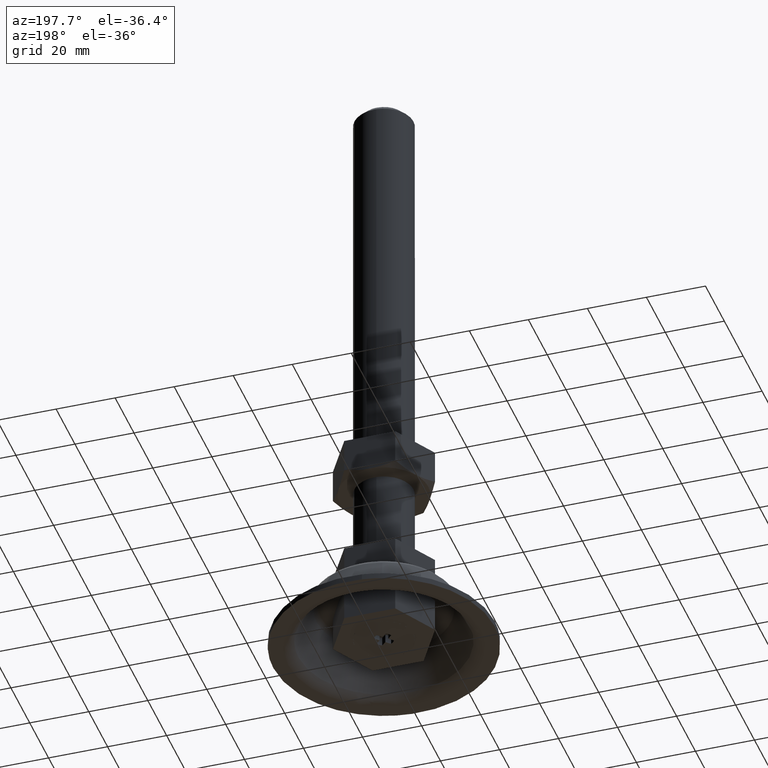
[diagram: clean part render]
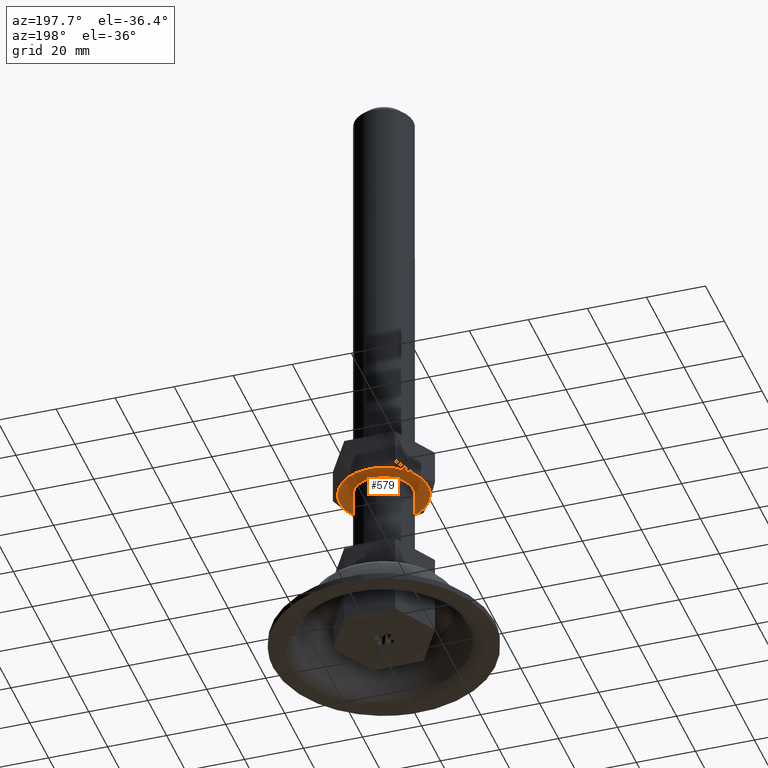
[diagram: same view with one face highlighted and labeled with its STEP entity id]
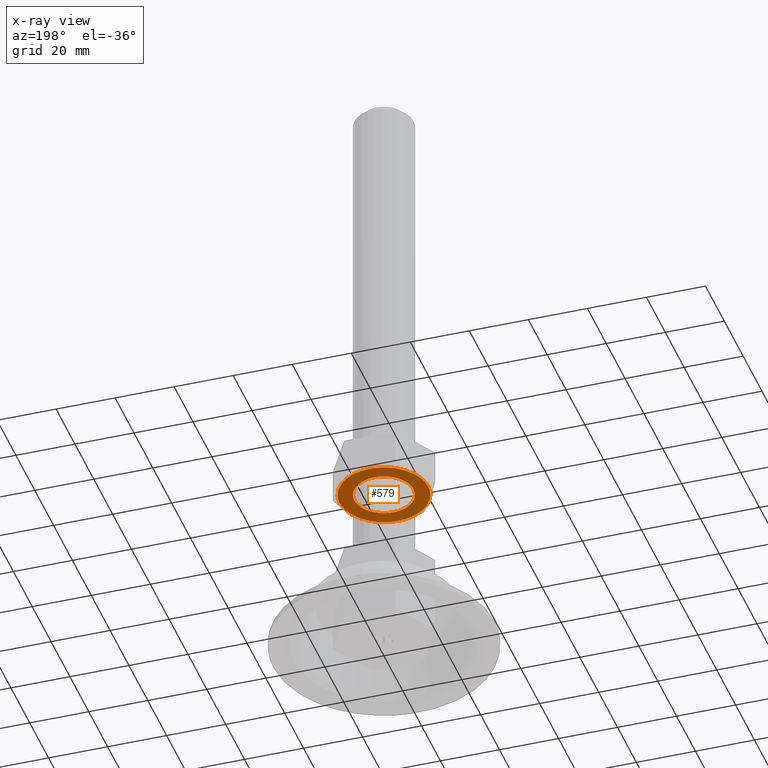
[diagram: x-ray of the same camera — body ghosted, the highlighted face saturated]
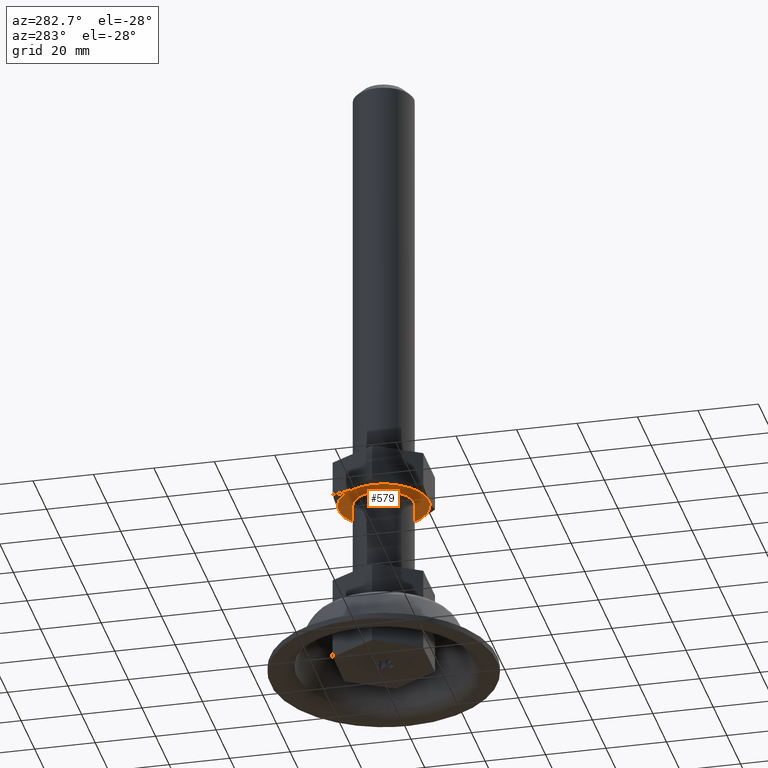
[diagram: same view with one face highlighted and labeled with its STEP entity id]
A machine part, auxiliary view. The second image highlights one B-rep face of the part: STEP entity #579.
The next image is the same camera in x-ray: the body ghosted, the highlighted face saturated — about 9% of this face is hidden behind the body in this view.
A second angle (auxiliary view) of the same face is appended — the face is thin or edge-on in the first view.
In plain terms, the highlighted face is a freeform B-spline surface patch.
Its self-contained STEP definition (entity closure, byte-faithful):
#62=CARTESIAN_POINT('',(14.979491943233420,0.0,61.0));
#63=VERTEX_POINT('',#62);
#64=CARTESIAN_POINT('',(13.320454994616201,-6.852054992160686,61.000000000034582));
#65=VERTEX_POINT('',#64);
#66=CARTESIAN_POINT('',(14.979491943233420,0.0,61.0));
#67=CARTESIAN_POINT('',(14.979491943233416,-3.626872615234458,61.0));
#68=CARTESIAN_POINT('',(13.320454994616197,-6.852054992160686,61.000000000034582));
#76=(BOUNDED_CURVE()B_SPLINE_CURVE(2,(#66,#67,#68),.UNSPECIFIED.,.F.,.U.)B_SPLINE_CURVE_WITH_KNOTS((3,3),(0.500000000000000,0.577800589177557),.UNSPECIFIED.)CURVE()GEOMETRIC_REPRESENTATION_ITEM()RATIONAL_B_SPLINE_CURVE((1.0,0.908850940040809,0.874433484624063))REPRESENTATION_ITEM(''));
#77=EDGE_CURVE('',#63,#65,#76,.T.);
#79=CARTESIAN_POINT('',(-12.906767066722010,7.602666819178419,61.000000000012747));
#80=VERTEX_POINT('',#79);
#81=CARTESIAN_POINT('',(-12.906767066722011,7.602666819178419,61.000000000012740));
#82=CARTESIAN_POINT('',(-8.561484989880142,14.979491943233425,60.999999999999993));
#83=CARTESIAN_POINT('',(0.0,14.979491943233420,61.0));
#84=CARTESIAN_POINT('',(14.979491943233425,14.979491943233425,60.999999999999993));
#85=CARTESIAN_POINT('',(14.979491943233420,0.0,61.0));
#93=(BOUNDED_CURVE()B_SPLINE_CURVE(2,(#81,#82,#83,#84,#85),.UNSPECIFIED.,.F.,.U.)B_SPLINE_CURVE_WITH_KNOTS((3,2,3),(0.086609155417507,0.250000000000000,0.500000000000000),.UNSPECIFIED.)CURVE()GEOMETRIC_REPRESENTATION_ITEM()RATIONAL_B_SPLINE_CURVE((0.867367237169246,0.808575718422341,1.0,0.707106781186548,1.0))REPRESENTATION_ITEM(''));
#94=EDGE_CURVE('',#80,#63,#93,.T.);
#208=CARTESIAN_POINT('',(-14.979491943233420,0.0,61.0));
#209=VERTEX_POINT('',#208);
#210=CARTESIAN_POINT('',(13.320454994616197,-6.852054992160686,61.000000000034582));
#211=CARTESIAN_POINT('',(9.139693529274778,-14.979491943233416,60.999999999999986));
#212=CARTESIAN_POINT('',(0.0,-14.979491943233420,61.0));
#213=CARTESIAN_POINT('',(-14.979491943233425,-14.979491943233425,60.999999999999993));
#214=CARTESIAN_POINT('',(-14.979491943233420,0.0,61.0));
#222=(BOUNDED_CURVE()B_SPLINE_CURVE(2,(#210,#211,#212,#213,#214),.UNSPECIFIED.,.F.,.U.)B_SPLINE_CURVE_WITH_KNOTS((3,2,3),(0.577800589177557,0.750000000000000,1.0),.UNSPECIFIED.)CURVE()GEOMETRIC_REPRESENTATION_ITEM()RATIONAL_B_SPLINE_CURVE((0.874433484624063,0.798255841145738,1.0,0.707106781186548,1.0))REPRESENTATION_ITEM(''));
#223=EDGE_CURVE('',#65,#209,#222,.T.);
#308=CARTESIAN_POINT('',(-14.979491943233420,0.0,61.0));
#309=CARTESIAN_POINT('',(-14.979491943233416,4.083878240165117,61.0));
#310=CARTESIAN_POINT('',(-12.906767066722004,7.602666819178419,61.000000000012754));
#318=(BOUNDED_CURVE()B_SPLINE_CURVE(2,(#308,#309,#310),.UNSPECIFIED.,.F.,.U.)B_SPLINE_CURVE_WITH_KNOTS((3,3),(0.0,0.086609155417507),.UNSPECIFIED.)CURVE()GEOMETRIC_REPRESENTATION_ITEM()RATIONAL_B_SPLINE_CURVE((1.0,0.898531062764207,0.867367237169247))REPRESENTATION_ITEM(''));
#319=EDGE_CURVE('',#209,#80,#318,.T.);
#359=CARTESIAN_POINT('',(-0.784590957487142,-9.969173337314853,61.0));
#360=VERTEX_POINT('',#359);
#366=CARTESIAN_POINT('',(-10.0,0.0,61.0));
#367=VERTEX_POINT('',#366);
#368=CARTESIAN_POINT('',(-10.0,0.0,61.0));
#369=CARTESIAN_POINT('',(-10.000000000000002,-9.243904916193854,60.999999999999993));
#370=CARTESIAN_POINT('',(-0.784590957487142,-9.969173337314853,61.0));
#378=(BOUNDED_CURVE()B_SPLINE_CURVE(2,(#368,#369,#370),.UNSPECIFIED.,.F.,.U.)B_SPLINE_CURVE_WITH_KNOTS((3,3),(0.0,0.236331300625590),.UNSPECIFIED.)CURVE()GEOMETRIC_REPRESENTATION_ITEM()RATIONAL_B_SPLINE_CURVE((1.0,0.723120658613605,0.969723356156837))REPRESENTATION_ITEM(''));
#379=EDGE_CURVE('',#367,#360,#378,.T.);
#381=CARTESIAN_POINT('',(0.784590957487143,9.969173337314853,61.0));
#382=VERTEX_POINT('',#381);
#383=CARTESIAN_POINT('',(0.784590957487143,9.969173337314853,60.999999999999993));
#384=CARTESIAN_POINT('',(0.392901070286356,10.000000000000002,61.0));
#385=CARTESIAN_POINT('',(0.0,10.0,61.0));
#386=CARTESIAN_POINT('',(-10.000000000000002,10.000000000000002,60.999999999999993));
#387=CARTESIAN_POINT('',(-10.0,0.0,61.0));
#395=(BOUNDED_CURVE()B_SPLINE_CURVE(2,(#383,#384,#385,#386,#387),.UNSPECIFIED.,.F.,.U.)B_SPLINE_CURVE_WITH_KNOTS((3,2,3),(0.736331300625590,0.750000000000000,1.0),.UNSPECIFIED.)CURVE()GEOMETRIC_REPRESENTATION_ITEM()RATIONAL_B_SPLINE_CURVE((0.969723356156837,0.983986122572942,1.0,0.707106781186548,1.0))REPRESENTATION_ITEM(''));
#396=EDGE_CURVE('',#382,#367,#395,.T.);
#472=CARTESIAN_POINT('',(10.0,0.0,61.0));
#473=VERTEX_POINT('',#472);
#474=CARTESIAN_POINT('',(10.0,0.0,61.0));
#475=CARTESIAN_POINT('',(9.999999999999998,9.243904916193845,60.999999999999993));
#476=CARTESIAN_POINT('',(0.784590957487143,9.969173337314853,61.0));
#484=(BOUNDED_CURVE()B_SPLINE_CURVE(2,(#474,#475,#476),.UNSPECIFIED.,.F.,.U.)B_SPLINE_CURVE_WITH_KNOTS((3,3),(0.500000000000000,0.736331300625590),.UNSPECIFIED.)CURVE()GEOMETRIC_REPRESENTATION_ITEM()RATIONAL_B_SPLINE_CURVE((1.0,0.723120658613606,0.969723356156837))REPRESENTATION_ITEM(''));
#485=EDGE_CURVE('',#473,#382,#484,.T.);
#487=CARTESIAN_POINT('',(-0.784590957487142,-9.969173337314853,61.0));
#488=CARTESIAN_POINT('',(-0.392901070286355,-10.0,60.999999999999993));
#489=CARTESIAN_POINT('',(0.0,-10.0,61.0));
#490=CARTESIAN_POINT('',(10.000000000000002,-10.000000000000002,60.999999999999993));
#491=CARTESIAN_POINT('',(10.0,0.0,61.0));
#499=(BOUNDED_CURVE()B_SPLINE_CURVE(2,(#487,#488,#489,#490,#491),.UNSPECIFIED.,.F.,.U.)B_SPLINE_CURVE_WITH_KNOTS((3,2,3),(0.236331300625590,0.250000000000000,0.500000000000000),.UNSPECIFIED.)CURVE()GEOMETRIC_REPRESENTATION_ITEM()RATIONAL_B_SPLINE_CURVE((0.969723356156838,0.983986122572942,1.0,0.707106781186548,1.0))REPRESENTATION_ITEM(''));
#500=EDGE_CURVE('',#360,#473,#499,.T.);
#562=CARTESIAN_POINT('',(-16.475943411529631,16.475411659746541,61.0));
#563=CARTESIAN_POINT('',(16.475943947238001,16.475411659746541,61.0));
#564=CARTESIAN_POINT('',(-16.475943411529631,-16.469278602384261,61.0));
#565=CARTESIAN_POINT('',(16.475943947238001,-16.469278602384261,61.0));
#566=B_SPLINE_SURFACE_WITH_KNOTS('',1,1,((#562,#564),(#563,#565)),.UNSPECIFIED.,.F.,.F.,.U.,(2,2),(2,2),(0.0,32.951887358767628),(0.0,32.944690262130813),.UNSPECIFIED.);
#567=ORIENTED_EDGE('',*,*,#319,.T.);
#568=ORIENTED_EDGE('',*,*,#94,.T.);
#569=ORIENTED_EDGE('',*,*,#77,.T.);
#570=ORIENTED_EDGE('',*,*,#223,.T.);
#571=EDGE_LOOP('',(#567,#568,#569,#570));
#572=FACE_OUTER_BOUND('',#571,.T.);
#573=ORIENTED_EDGE('',*,*,#485,.T.);
#574=ORIENTED_EDGE('',*,*,#396,.T.);
#575=ORIENTED_EDGE('',*,*,#379,.T.);
#576=ORIENTED_EDGE('',*,*,#500,.T.);
#577=EDGE_LOOP('',(#573,#574,#575,#576));
#578=FACE_BOUND('',#577,.T.);
#579=ADVANCED_FACE('',(#572,#578),#566,.T.);